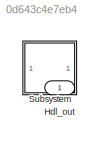
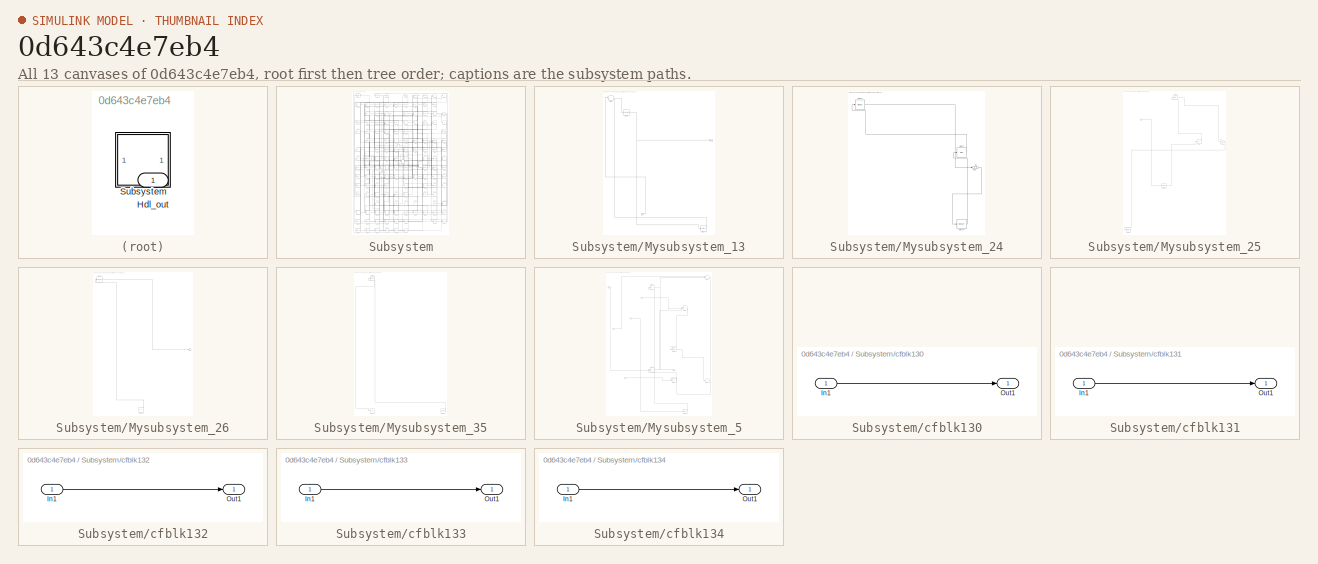
[diagram: thumbnail index - all 13 canvases of the model, root first then tree order]
MODEL slx_0d643c4e7eb4
KIND model
CONFIG AbsTol = auto
CONFIG EnableMultiTasking = off
CONFIG FixedStep = auto
CONFIG MaxStep = auto
CONFIG MinStep = auto
CONFIG RelTol = 1e-3
CONFIG SampleTimeConstraint = Unconstrained
CONFIG SolverName = VariableStepAuto
CONFIG StartTime = 0.0
CONFIG StopTime = 10.0
BLOCK [Outport] Hdl_out
  OutDataTypeStr = uint8
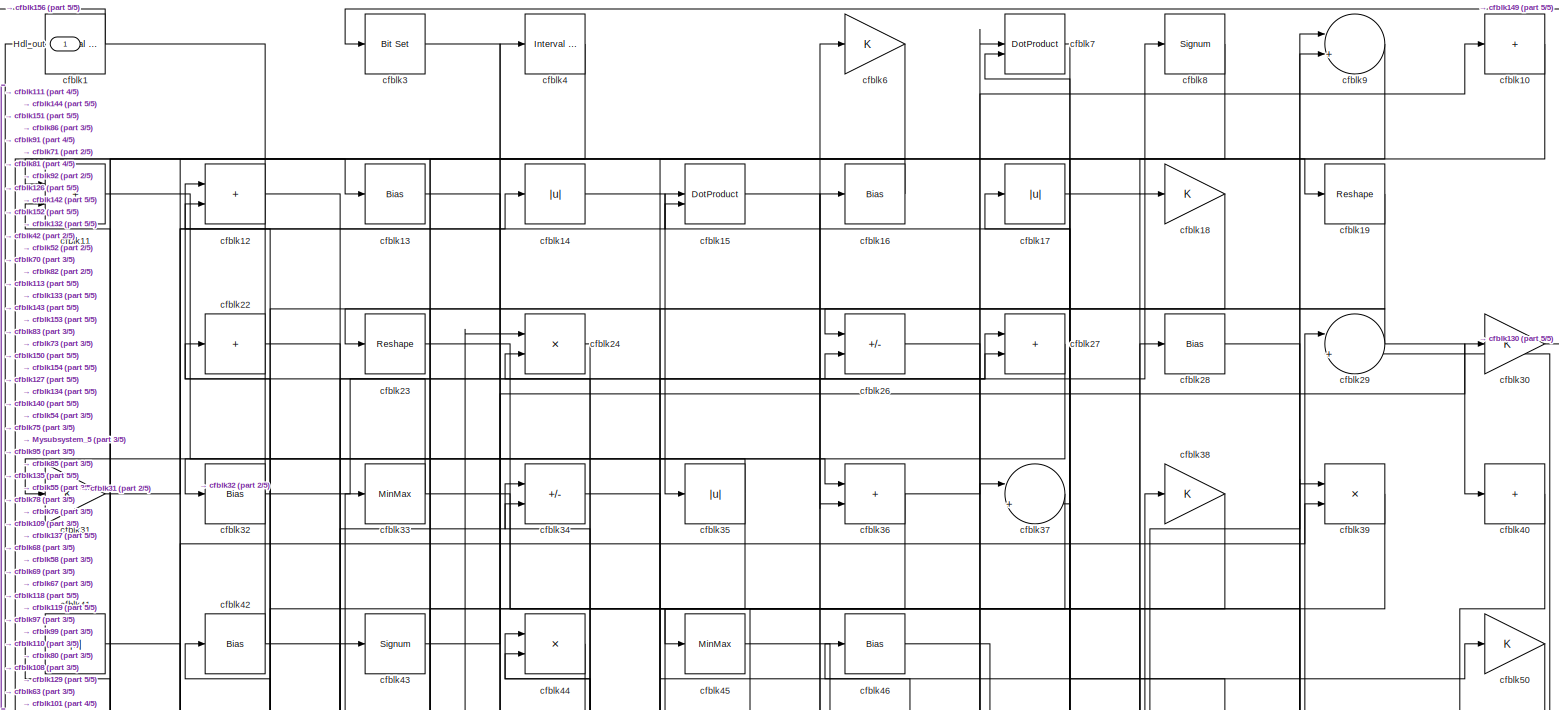
[diagram: Subsystem - part 1/5, full width, top band]
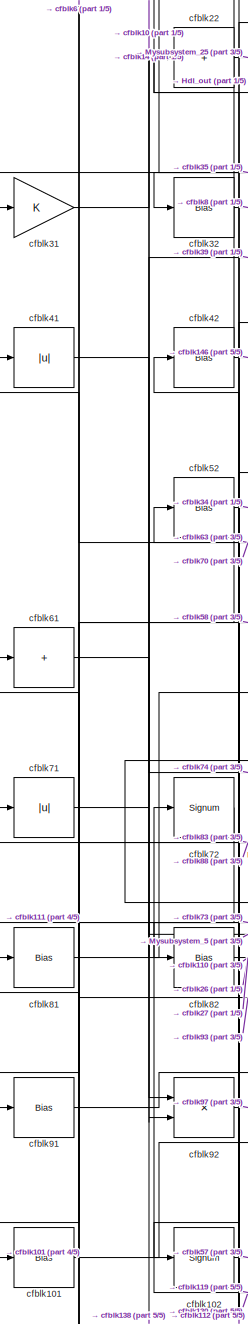
[diagram: Subsystem - part 2/5, middle left region]
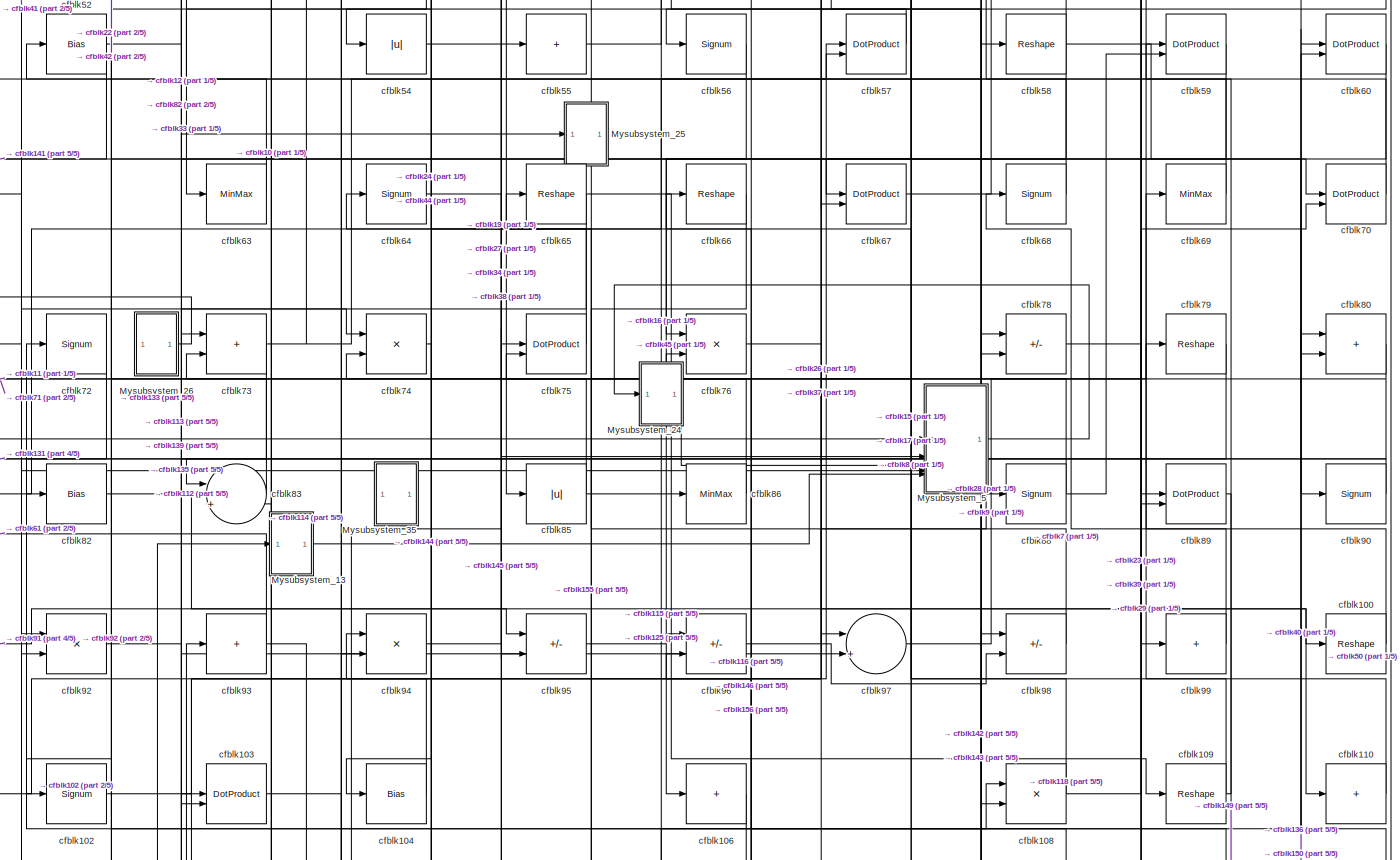
[diagram: Subsystem - part 3/5, full width, middle band]
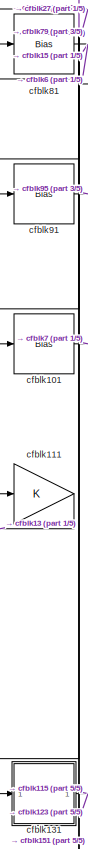
[diagram: Subsystem - part 4/5, bottom left region]
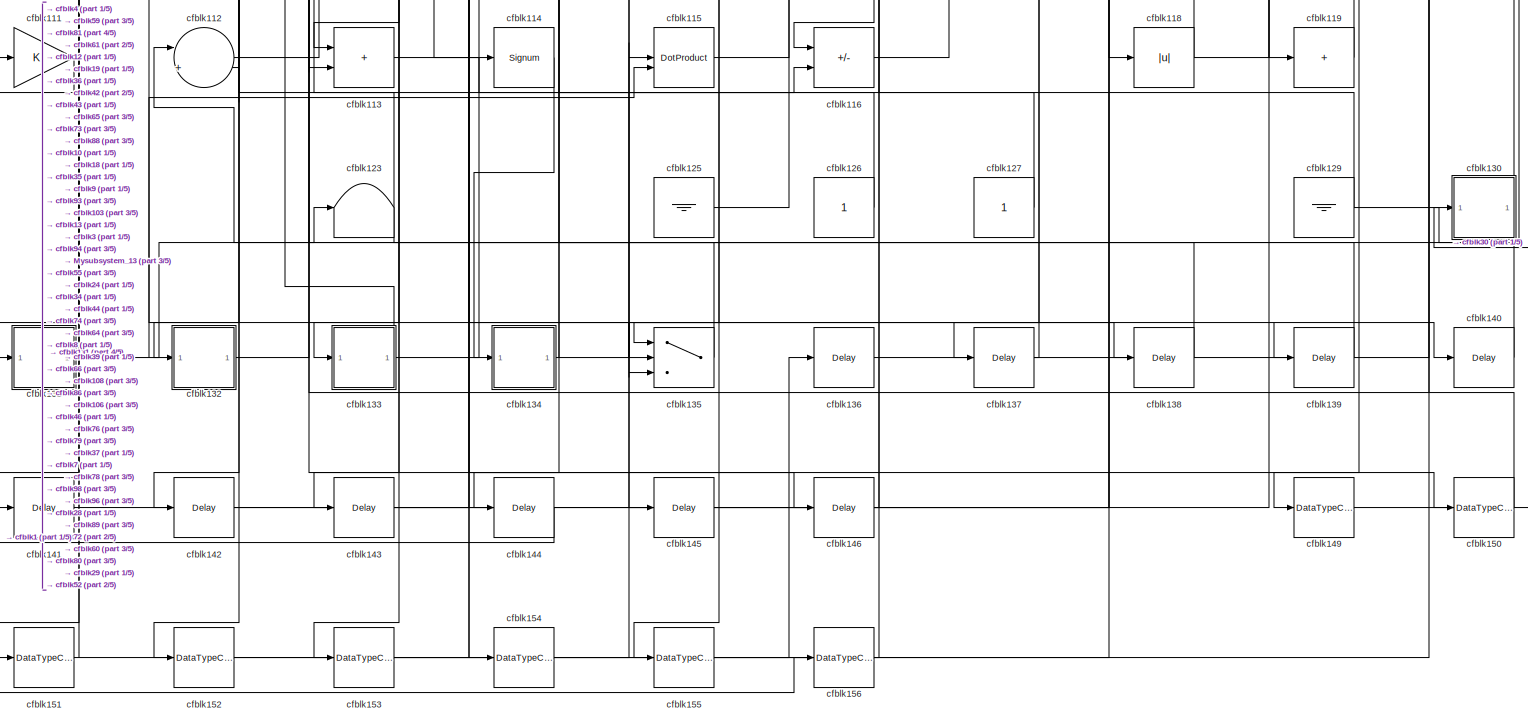
[diagram: Subsystem - part 5/5, full width, bottom band]
BLOCK [SubSystem] Subsystem
BLOCK [Outport] Subsystem/Hdl_out
  OutDataTypeStr = uint8
BLOCK [SubSystem] Subsystem/Mysubsystem_13
  RTWFcnName = Mysubsystem_13
  RTWFcnNameOpts = User specified
  RTWFileNameOpts = Use function name
  RTWSystemCode = Reusable function
  TreatAsAtomicUnit = on
BLOCK [Inport] Subsystem/Mysubsystem_13/In1
BLOCK [Outport] Subsystem/Mysubsystem_13/Out1
BLOCK [Delay] Subsystem/Mysubsystem_13/cfblk147
  InputPortMap = u0
  SampleTime = 1
BLOCK [Sum] Subsystem/Mysubsystem_13/cfblk51
  Inputs = |++
BLOCK [Reshape] Subsystem/Mysubsystem_13/cfblk62
BLOCK [SubSystem] Subsystem/Mysubsystem_24
  RTWFcnName = Mysubsystem_24
  RTWFcnNameOpts = User specified
  RTWFileNameOpts = Use function name
  RTWSystemCode = Reusable function
  TreatAsAtomicUnit = on
BLOCK [Inport] Subsystem/Mysubsystem_24/In1
BLOCK [Outport] Subsystem/Mysubsystem_24/Out1
BLOCK [Signum] Subsystem/Mysubsystem_24/cfblk107
BLOCK [MinMax] Subsystem/Mysubsystem_24/cfblk53
BLOCK [Bias] Subsystem/Mysubsystem_24/cfblk77
  Bias = 0.0
  SaturateOnIntegerOverflow = off
BLOCK [SubSystem] Subsystem/Mysubsystem_25
  RTWFcnName = Mysubsystem_25
  RTWFcnNameOpts = User specified
  RTWFileNameOpts = Use function name
  RTWSystemCode = Reusable function
  TreatAsAtomicUnit = on
BLOCK [Inport] Subsystem/Mysubsystem_25/In1
BLOCK [ToWorkspace] Subsystem/Mysubsystem_25/cfblk121
  MaxDataPoints = inf
  SampleTime = -1
  SaveFormat = Timeseries
  VariableName = simout
BLOCK [Sum] Subsystem/Mysubsystem_25/cfblk47
  IconShape = rectangular
  Inputs = +
BLOCK [Gain] Subsystem/Mysubsystem_25/cfblk49
BLOCK [Bias] Subsystem/Mysubsystem_25/cfblk5
  Bias = 0.0
  SaturateOnIntegerOverflow = off
BLOCK [Signum] Subsystem/Mysubsystem_25/cfblk84
BLOCK [SubSystem] Subsystem/Mysubsystem_26
  RTWFcnName = Mysubsystem_26
  RTWFcnNameOpts = User specified
  RTWFileNameOpts = Use function name
  RTWSystemCode = Reusable function
  TreatAsAtomicUnit = on
BLOCK [Outport] Subsystem/Mysubsystem_26/Out1
BLOCK [Constant] Subsystem/Mysubsystem_26/cfblk124
  SampleTime = -1
BLOCK [Signum] Subsystem/Mysubsystem_26/cfblk21
BLOCK [SubSystem] Subsystem/Mysubsystem_35
  RTWFcnName = Mysubsystem_35
  RTWFcnNameOpts = User specified
  RTWFileNameOpts = Use function name
  RTWSystemCode = Reusable function
  TreatAsAtomicUnit = on
BLOCK [Display] Subsystem/Mysubsystem_35/cfblk122
  Decimation = 1
BLOCK [Reference] Subsystem/Mysubsystem_35/cfblk128  REF=hdlsllib/Sources/Counter
Limited
  SourceBlock = hdlsllib/Sources/Counter\nLimited
  SourceType = Counter Limited
BLOCK [Reference] Subsystem/Mysubsystem_35/cfblk2  REF=hdlsllib/Logic and Bit
Operations/Detect Fall
Nonpositive
  SourceBlock = hdlsllib/Logic and Bit\nOperations/Detect Fall\nNonpositive
  SourceType = Detect Fall Nonpositive
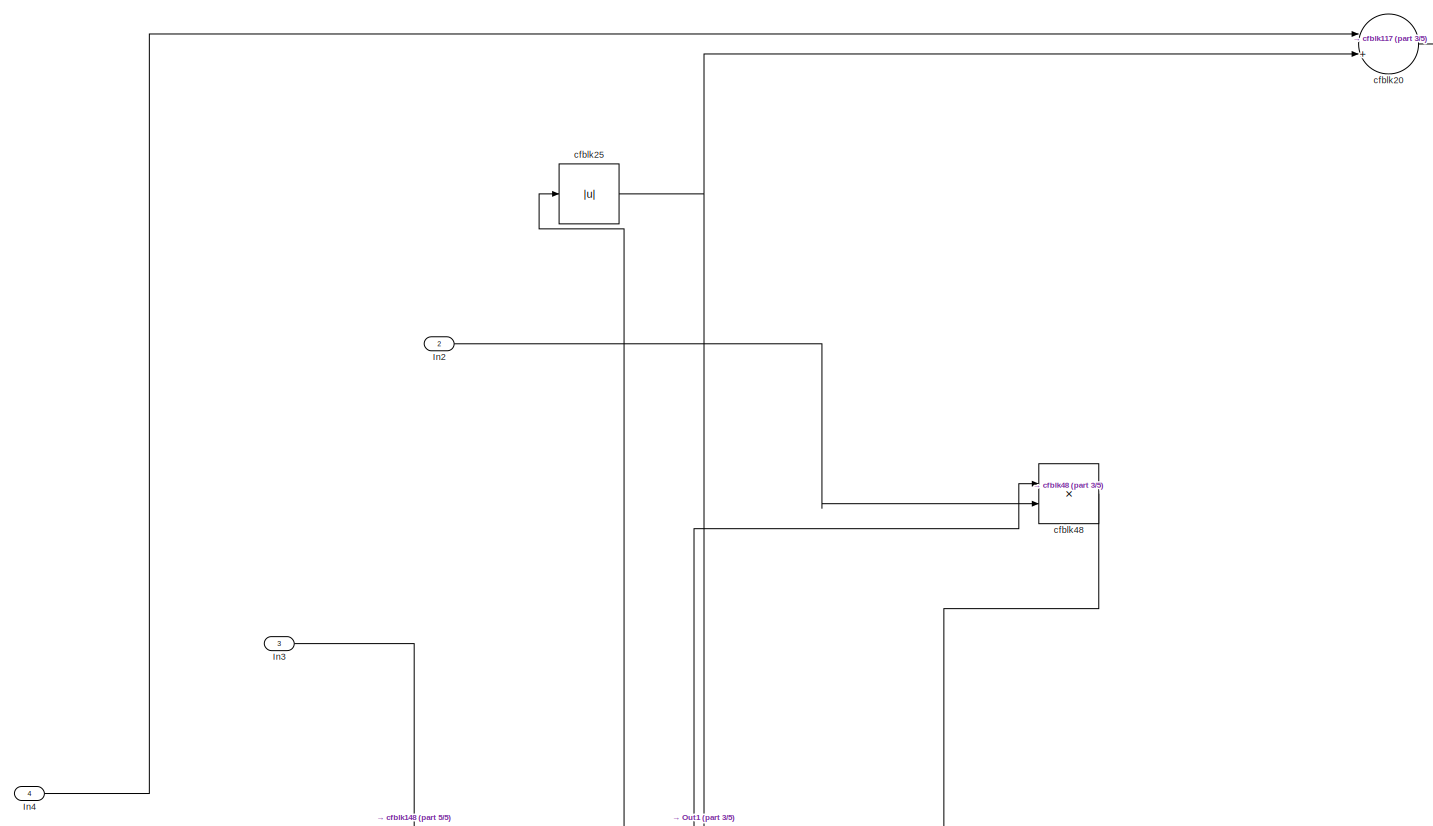
[diagram: Subsystem/Mysubsystem_5 - part 1/5, full width, top band]
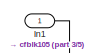
[diagram: Subsystem/Mysubsystem_5 - part 2/5, top left region]
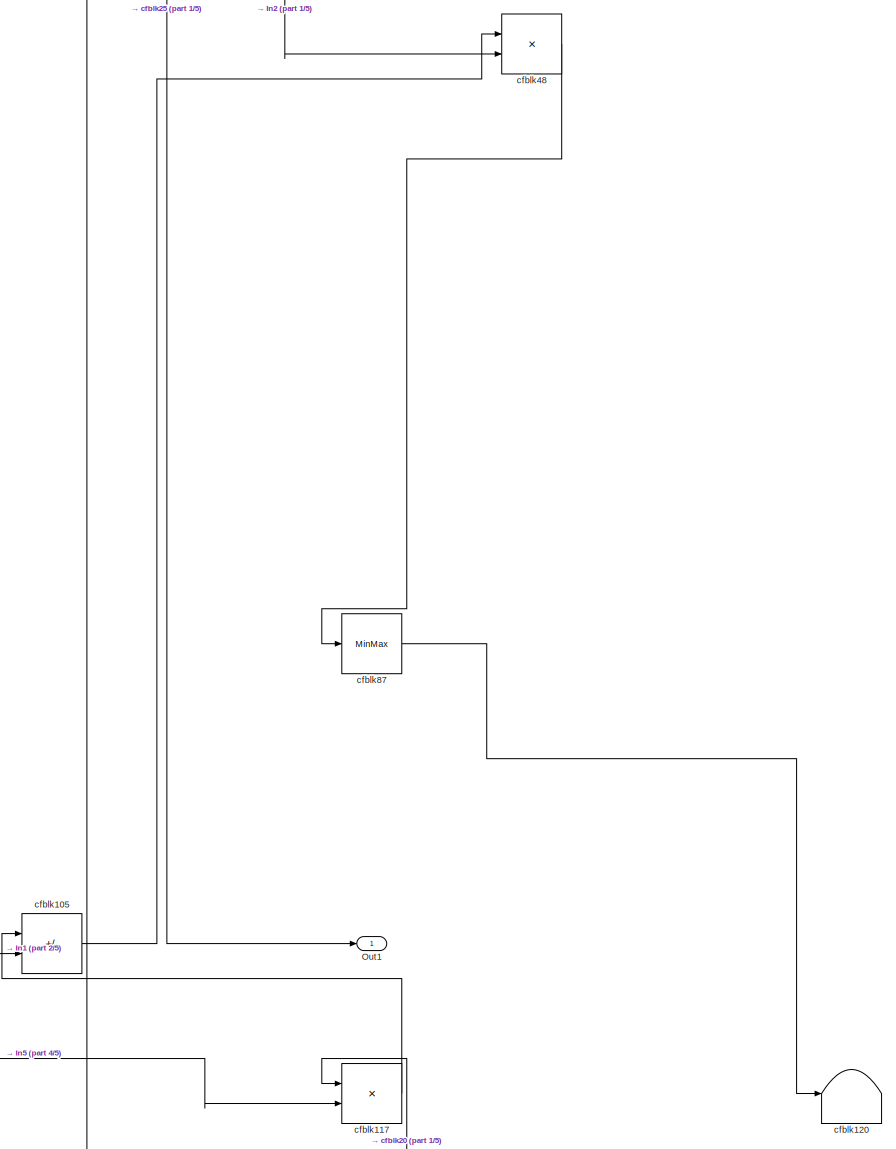
[diagram: Subsystem/Mysubsystem_5 - part 3/5, middle right region]
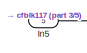
[diagram: Subsystem/Mysubsystem_5 - part 4/5, bottom left region]
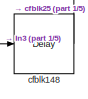
[diagram: Subsystem/Mysubsystem_5 - part 5/5, bottom right region]
BLOCK [SubSystem] Subsystem/Mysubsystem_5
  RTWFcnName = Mysubsystem_5
  RTWFcnNameOpts = User specified
  RTWFileNameOpts = Use function name
  RTWSystemCode = Reusable function
  TreatAsAtomicUnit = on
BLOCK [Inport] Subsystem/Mysubsystem_5/In1
BLOCK [Inport] Subsystem/Mysubsystem_5/In2
  Port = 2
BLOCK [Inport] Subsystem/Mysubsystem_5/In3
  Port = 3
BLOCK [Inport] Subsystem/Mysubsystem_5/In4
  Port = 4
BLOCK [Inport] Subsystem/Mysubsystem_5/In5
  Port = 5
BLOCK [Outport] Subsystem/Mysubsystem_5/Out1
BLOCK [Sum] Subsystem/Mysubsystem_5/cfblk105
  IconShape = rectangular
  Inputs = +-
BLOCK [Product] Subsystem/Mysubsystem_5/cfblk117
  Inputs = */
  RndMeth = Zero
  SaturateOnIntegerOverflow = on
BLOCK [Terminator] Subsystem/Mysubsystem_5/cfblk120
BLOCK [Delay] Subsystem/Mysubsystem_5/cfblk148
  InputPortMap = u0
  SampleTime = 1
BLOCK [Sum] Subsystem/Mysubsystem_5/cfblk20
  Inputs = |++
BLOCK [Abs] Subsystem/Mysubsystem_5/cfblk25
  SaturateOnIntegerOverflow = off
BLOCK [Product] Subsystem/Mysubsystem_5/cfblk48
  Inputs = */
  RndMeth = Zero
  SaturateOnIntegerOverflow = on
BLOCK [MinMax] Subsystem/Mysubsystem_5/cfblk87
BLOCK [Reference] Subsystem/cfblk1  REF=hdlsllib/Logic and Bit
Operations/Interval Test
  SourceBlock = hdlsllib/Logic and Bit\nOperations/Interval Test
  SourceType = Interval Test
BLOCK [Sum] Subsystem/cfblk10
  IconShape = rectangular
  Inputs = +
  OutDataTypeStr = uint8
BLOCK [Reshape] Subsystem/cfblk100
BLOCK [Bias] Subsystem/cfblk101
  Bias = 0.0
  SaturateOnIntegerOverflow = off
BLOCK [Signum] Subsystem/cfblk102
BLOCK [DotProduct] Subsystem/cfblk103
  OutDataTypeStr = uint8
BLOCK [Bias] Subsystem/cfblk104
  Bias = 0.0
  SaturateOnIntegerOverflow = off
BLOCK [Sum] Subsystem/cfblk106
  IconShape = rectangular
  Inputs = +
  OutDataTypeStr = uint8
BLOCK [Product] Subsystem/cfblk108
  Inputs = */
  OutDataTypeStr = uint8
  RndMeth = Zero
  SaturateOnIntegerOverflow = on
BLOCK [Reshape] Subsystem/cfblk109
BLOCK [Sum] Subsystem/cfblk11
  IconShape = rectangular
  OutDataTypeStr = uint8
BLOCK [Sum] Subsystem/cfblk110
  IconShape = rectangular
  Inputs = +
  OutDataTypeStr = uint8
BLOCK [Gain] Subsystem/cfblk111
  OutDataTypeStr = uint8
BLOCK [Sum] Subsystem/cfblk112
  Inputs = |++
  OutDataTypeStr = uint8
BLOCK [Sum] Subsystem/cfblk113
  IconShape = rectangular
  OutDataTypeStr = uint8
BLOCK [Signum] Subsystem/cfblk114
BLOCK [DotProduct] Subsystem/cfblk115
  OutDataTypeStr = uint8
BLOCK [Sum] Subsystem/cfblk116
  IconShape = rectangular
  Inputs = +-
  OutDataTypeStr = uint8
BLOCK [Abs] Subsystem/cfblk118
  OutDataTypeStr = uint8
  SaturateOnIntegerOverflow = off
BLOCK [Sum] Subsystem/cfblk119
  IconShape = rectangular
  Inputs = +
  OutDataTypeStr = uint8
BLOCK [Sum] Subsystem/cfblk12
  IconShape = rectangular
  OutDataTypeStr = uint8
BLOCK [Terminator] Subsystem/cfblk123
BLOCK [Ground] Subsystem/cfblk125
BLOCK [Constant] Subsystem/cfblk126
  OutDataTypeStr = uint8
  SampleTime = -1
BLOCK [Constant] Subsystem/cfblk127
  OutDataTypeStr = uint8
  SampleTime = -1
BLOCK [Ground] Subsystem/cfblk129
BLOCK [Bias] Subsystem/cfblk13
  Bias = 0.0
  SaturateOnIntegerOverflow = off
BLOCK [SubSystem] Subsystem/cfblk130
  LibrarySourceBlock = hdlsllib/Ports &\nSubsystems/Subsystem
BLOCK [Inport] Subsystem/cfblk130/In1
BLOCK [Outport] Subsystem/cfblk130/Out1
BLOCK [SubSystem] Subsystem/cfblk131
  LibrarySourceBlock = hdlsllib/Ports &\nSubsystems/Subsystem
BLOCK [Inport] Subsystem/cfblk131/In1
BLOCK [Outport] Subsystem/cfblk131/Out1
BLOCK [SubSystem] Subsystem/cfblk132
  LibrarySourceBlock = hdlsllib/Ports &\nSubsystems/Subsystem
BLOCK [Inport] Subsystem/cfblk132/In1
BLOCK [Outport] Subsystem/cfblk132/Out1
BLOCK [SubSystem] Subsystem/cfblk133
  LibrarySourceBlock = hdlsllib/Ports &\nSubsystems/Subsystem
BLOCK [Inport] Subsystem/cfblk133/In1
BLOCK [Outport] Subsystem/cfblk133/Out1
BLOCK [SubSystem] Subsystem/cfblk134
  LibrarySourceBlock = hdlsllib/Ports &\nSubsystems/Subsystem
BLOCK [Inport] Subsystem/cfblk134/In1
BLOCK [Outport] Subsystem/cfblk134/Out1
BLOCK [Switch] Subsystem/cfblk135
  InputSameDT = off
  OutDataTypeStr = uint8
  SaturateOnIntegerOverflow = off
BLOCK [Delay] Subsystem/cfblk136
  InputPortMap = u0
  SampleTime = 1
BLOCK [Delay] Subsystem/cfblk137
  InputPortMap = u0
  SampleTime = 1
BLOCK [Delay] Subsystem/cfblk138
  InputPortMap = u0
  SampleTime = 1
BLOCK [Delay] Subsystem/cfblk139
  InputPortMap = u0
  SampleTime = 1
BLOCK [Abs] Subsystem/cfblk14
  OutDataTypeStr = uint8
  SaturateOnIntegerOverflow = off
BLOCK [Delay] Subsystem/cfblk140
  InputPortMap = u0
  SampleTime = 1
BLOCK [Delay] Subsystem/cfblk141
  InputPortMap = u0
  SampleTime = 1
BLOCK [Delay] Subsystem/cfblk142
  InputPortMap = u0
  SampleTime = 1
BLOCK [Delay] Subsystem/cfblk143
  InputPortMap = u0
  SampleTime = 1
BLOCK [Delay] Subsystem/cfblk144
  InputPortMap = u0
  SampleTime = 1
BLOCK [Delay] Subsystem/cfblk145
  InputPortMap = u0
  SampleTime = 1
BLOCK [Delay] Subsystem/cfblk146
  InputPortMap = u0
  SampleTime = 1
BLOCK [DataTypeConversion] Subsystem/cfblk149
  OutDataTypeStr = uint8
  RndMeth = Floor
  SaturateOnIntegerOverflow = off
BLOCK [DotProduct] Subsystem/cfblk15
  OutDataTypeStr = uint8
BLOCK [DataTypeConversion] Subsystem/cfblk150
  OutDataTypeStr = uint8
  RndMeth = Floor
  SaturateOnIntegerOverflow = off
BLOCK [DataTypeConversion] Subsystem/cfblk151
  OutDataTypeStr = uint8
  RndMeth = Floor
  SaturateOnIntegerOverflow = off
BLOCK [DataTypeConversion] Subsystem/cfblk152
  OutDataTypeStr = uint8
  RndMeth = Floor
  SaturateOnIntegerOverflow = off
BLOCK [DataTypeConversion] Subsystem/cfblk153
  OutDataTypeStr = uint8
  RndMeth = Floor
  SaturateOnIntegerOverflow = off
BLOCK [DataTypeConversion] Subsystem/cfblk154
  OutDataTypeStr = uint8
  RndMeth = Floor
  SaturateOnIntegerOverflow = off
BLOCK [DataTypeConversion] Subsystem/cfblk155
  OutDataTypeStr = uint8
  RndMeth = Floor
  SaturateOnIntegerOverflow = off
BLOCK [DataTypeConversion] Subsystem/cfblk156
  OutDataTypeStr = uint8
  RndMeth = Floor
  SaturateOnIntegerOverflow = off
BLOCK [Bias] Subsystem/cfblk16
  Bias = 0.0
  SaturateOnIntegerOverflow = off
BLOCK [Abs] Subsystem/cfblk17
  OutDataTypeStr = uint8
  SaturateOnIntegerOverflow = off
BLOCK [Gain] Subsystem/cfblk18
  OutDataTypeStr = uint8
BLOCK [Reshape] Subsystem/cfblk19
BLOCK [Sum] Subsystem/cfblk22
  IconShape = rectangular
  Inputs = +
  OutDataTypeStr = uint8
BLOCK [Reshape] Subsystem/cfblk23
BLOCK [Product] Subsystem/cfblk24
  Inputs = */
  OutDataTypeStr = uint8
  RndMeth = Zero
  SaturateOnIntegerOverflow = on
BLOCK [Sum] Subsystem/cfblk26
  IconShape = rectangular
  Inputs = +-
  OutDataTypeStr = uint8
BLOCK [Sum] Subsystem/cfblk27
  IconShape = rectangular
  OutDataTypeStr = uint8
BLOCK [Bias] Subsystem/cfblk28
  Bias = 0.0
  SaturateOnIntegerOverflow = off
BLOCK [Sum] Subsystem/cfblk29
  Inputs = |++
  OutDataTypeStr = uint8
BLOCK [Reference] Subsystem/cfblk3  REF=simulink/Logic and Bit
Operations/Bit Set
  LibrarySourceBlock = hdlsllib/Logic and Bit\nOperations/Bit Set
  SourceBlock = simulink/Logic and Bit\nOperations/Bit Set
  SourceType = Bit Set
BLOCK [Gain] Subsystem/cfblk30
  OutDataTypeStr = uint8
BLOCK [Gain] Subsystem/cfblk31
  OutDataTypeStr = uint8
BLOCK [Bias] Subsystem/cfblk32
  Bias = 0.0
  SaturateOnIntegerOverflow = off
BLOCK [MinMax] Subsystem/cfblk33
  OutDataTypeStr = uint8
BLOCK [Sum] Subsystem/cfblk34
  IconShape = rectangular
  Inputs = +-
  OutDataTypeStr = uint8
BLOCK [Abs] Subsystem/cfblk35
  OutDataTypeStr = uint8
  SaturateOnIntegerOverflow = off
BLOCK [Sum] Subsystem/cfblk36
  IconShape = rectangular
  OutDataTypeStr = uint8
BLOCK [Sum] Subsystem/cfblk37
  Inputs = |++
  OutDataTypeStr = uint8
BLOCK [Gain] Subsystem/cfblk38
  OutDataTypeStr = uint8
BLOCK [Product] Subsystem/cfblk39
  Inputs = */
  OutDataTypeStr = uint8
  RndMeth = Zero
  SaturateOnIntegerOverflow = on
BLOCK [Reference] Subsystem/cfblk4  REF=hdlsllib/Logic and Bit
Operations/Interval Test
  SourceBlock = hdlsllib/Logic and Bit\nOperations/Interval Test
  SourceType = Interval Test
BLOCK [Sum] Subsystem/cfblk40
  IconShape = rectangular
  Inputs = +
  OutDataTypeStr = uint8
BLOCK [Abs] Subsystem/cfblk41
  OutDataTypeStr = uint8
  SaturateOnIntegerOverflow = off
BLOCK [Bias] Subsystem/cfblk42
  Bias = 0.0
  SaturateOnIntegerOverflow = off
BLOCK [Signum] Subsystem/cfblk43
BLOCK [Product] Subsystem/cfblk44
  Inputs = */
  OutDataTypeStr = uint8
  RndMeth = Zero
  SaturateOnIntegerOverflow = on
BLOCK [MinMax] Subsystem/cfblk45
  OutDataTypeStr = uint8
BLOCK [Bias] Subsystem/cfblk46
  Bias = 0.0
  SaturateOnIntegerOverflow = off
BLOCK [Gain] Subsystem/cfblk50
  OutDataTypeStr = uint8
BLOCK [Bias] Subsystem/cfblk52
  Bias = 0.0
  SaturateOnIntegerOverflow = off
BLOCK [Abs] Subsystem/cfblk54
  OutDataTypeStr = uint8
  SaturateOnIntegerOverflow = off
BLOCK [Sum] Subsystem/cfblk55
  IconShape = rectangular
  Inputs = +
  OutDataTypeStr = uint8
BLOCK [Signum] Subsystem/cfblk56
BLOCK [DotProduct] Subsystem/cfblk57
  OutDataTypeStr = uint8
BLOCK [Reshape] Subsystem/cfblk58
BLOCK [DotProduct] Subsystem/cfblk59
  OutDataTypeStr = uint8
BLOCK [Gain] Subsystem/cfblk6
  OutDataTypeStr = uint8
BLOCK [DotProduct] Subsystem/cfblk60
  OutDataTypeStr = uint8
BLOCK [Sum] Subsystem/cfblk61
  IconShape = rectangular
  Inputs = +
  OutDataTypeStr = uint8
BLOCK [MinMax] Subsystem/cfblk63
  OutDataTypeStr = uint8
BLOCK [Signum] Subsystem/cfblk64
BLOCK [Reshape] Subsystem/cfblk65
BLOCK [Reshape] Subsystem/cfblk66
BLOCK [DotProduct] Subsystem/cfblk67
  OutDataTypeStr = uint8
BLOCK [Signum] Subsystem/cfblk68
BLOCK [MinMax] Subsystem/cfblk69
  OutDataTypeStr = uint8
BLOCK [DotProduct] Subsystem/cfblk7
  OutDataTypeStr = uint8
BLOCK [DotProduct] Subsystem/cfblk70
  OutDataTypeStr = uint8
BLOCK [Abs] Subsystem/cfblk71
  OutDataTypeStr = uint8
  SaturateOnIntegerOverflow = off
BLOCK [Signum] Subsystem/cfblk72
BLOCK [Sum] Subsystem/cfblk73
  IconShape = rectangular
  OutDataTypeStr = uint8
BLOCK [Product] Subsystem/cfblk74
  Inputs = */
  OutDataTypeStr = uint8
  RndMeth = Zero
  SaturateOnIntegerOverflow = on
BLOCK [DotProduct] Subsystem/cfblk75
  OutDataTypeStr = uint8
BLOCK [Product] Subsystem/cfblk76
  Inputs = */
  OutDataTypeStr = uint8
  RndMeth = Zero
  SaturateOnIntegerOverflow = on
BLOCK [Sum] Subsystem/cfblk78
  IconShape = rectangular
  Inputs = +-
  OutDataTypeStr = uint8
BLOCK [Reshape] Subsystem/cfblk79
BLOCK [Signum] Subsystem/cfblk8
BLOCK [Sum] Subsystem/cfblk80
  IconShape = rectangular
  OutDataTypeStr = uint8
BLOCK [Bias] Subsystem/cfblk81
  Bias = 0.0
  SaturateOnIntegerOverflow = off
BLOCK [Bias] Subsystem/cfblk82
  Bias = 0.0
  SaturateOnIntegerOverflow = off
BLOCK [Sum] Subsystem/cfblk83
  Inputs = |++
  OutDataTypeStr = uint8
BLOCK [Abs] Subsystem/cfblk85
  OutDataTypeStr = uint8
  SaturateOnIntegerOverflow = off
BLOCK [MinMax] Subsystem/cfblk86
  OutDataTypeStr = uint8
BLOCK [Signum] Subsystem/cfblk88
BLOCK [DotProduct] Subsystem/cfblk89
  OutDataTypeStr = uint8
BLOCK [Sum] Subsystem/cfblk9
  Inputs = |++
  OutDataTypeStr = uint8
BLOCK [Signum] Subsystem/cfblk90
BLOCK [Bias] Subsystem/cfblk91
  Bias = 0.0
  SaturateOnIntegerOverflow = off
BLOCK [Product] Subsystem/cfblk92
  Inputs = */
  OutDataTypeStr = uint8
  RndMeth = Zero
  SaturateOnIntegerOverflow = on
BLOCK [Sum] Subsystem/cfblk93
  IconShape = rectangular
  Inputs = +
  OutDataTypeStr = uint8
BLOCK [Product] Subsystem/cfblk94
  Inputs = */
  OutDataTypeStr = uint8
  RndMeth = Zero
  SaturateOnIntegerOverflow = on
BLOCK [Sum] Subsystem/cfblk95
  IconShape = rectangular
  Inputs = +-
  OutDataTypeStr = uint8
BLOCK [Sum] Subsystem/cfblk96
  IconShape = rectangular
  Inputs = +-
  OutDataTypeStr = uint8
BLOCK [Sum] Subsystem/cfblk97
  Inputs = |++
  OutDataTypeStr = uint8
BLOCK [Sum] Subsystem/cfblk98
  IconShape = rectangular
  Inputs = +-
  OutDataTypeStr = uint8
BLOCK [Sum] Subsystem/cfblk99
  IconShape = rectangular
  Inputs = +
  OutDataTypeStr = uint8
LINE Subsystem/Mysubsystem_13/In1:1 -> Subsystem/Mysubsystem_13/cfblk51:1
LINE Subsystem/Mysubsystem_13/cfblk147:1 -> Subsystem/Mysubsystem_13/cfblk51:2
LINE Subsystem/Mysubsystem_13/cfblk51:1 -> Subsystem/Mysubsystem_13/cfblk62:1
NET Subsystem/Mysubsystem_13/cfblk62:1 -> Subsystem/Mysubsystem_13/Out1:1, Subsystem/Mysubsystem_13/cfblk147:1
LINE Subsystem/Mysubsystem_13:1 -> Subsystem/Mysubsystem_5:5
LINE Subsystem/Mysubsystem_24/In1:1 -> Subsystem/Mysubsystem_24/cfblk107:1
LINE Subsystem/Mysubsystem_24/cfblk107:1 -> Subsystem/Mysubsystem_24/cfblk77:1
LINE Subsystem/Mysubsystem_24/cfblk53:1 -> Subsystem/Mysubsystem_24/Out1:1
LINE Subsystem/Mysubsystem_24/cfblk77:1 -> Subsystem/Mysubsystem_24/cfblk53:1
LINE Subsystem/Mysubsystem_24:1 -> Subsystem/Mysubsystem_5:3
LINE Subsystem/Mysubsystem_25/In1:1 -> Subsystem/Mysubsystem_25/cfblk84:1
LINE Subsystem/Mysubsystem_25/cfblk47:1 -> Subsystem/Mysubsystem_25/cfblk5:1
LINE Subsystem/Mysubsystem_25/cfblk49:1 -> Subsystem/Mysubsystem_25/cfblk121:1
LINE Subsystem/Mysubsystem_25/cfblk5:1 -> Subsystem/Mysubsystem_25/cfblk49:1
LINE Subsystem/Mysubsystem_25/cfblk84:1 -> Subsystem/Mysubsystem_25/cfblk47:1
LINE Subsystem/Mysubsystem_26/cfblk124:1 -> Subsystem/Mysubsystem_26/cfblk21:1
LINE Subsystem/Mysubsystem_26/cfblk21:1 -> Subsystem/Mysubsystem_26/Out1:1
LINE Subsystem/Mysubsystem_26:1 -> Subsystem/Mysubsystem_5:1
LINE Subsystem/Mysubsystem_35/cfblk128:1 -> Subsystem/Mysubsystem_35/cfblk2:1
LINE Subsystem/Mysubsystem_35/cfblk2:1 -> Subsystem/Mysubsystem_35/cfblk122:1
LINE Subsystem/Mysubsystem_5/In1:1 -> Subsystem/Mysubsystem_5/cfblk105:2
LINE Subsystem/Mysubsystem_5/In2:1 -> Subsystem/Mysubsystem_5/cfblk48:2
LINE Subsystem/Mysubsystem_5/In3:1 -> Subsystem/Mysubsystem_5/cfblk148:1
LINE Subsystem/Mysubsystem_5/In4:1 -> Subsystem/Mysubsystem_5/cfblk20:1
LINE Subsystem/Mysubsystem_5/In5:1 -> Subsystem/Mysubsystem_5/cfblk117:2
LINE Subsystem/Mysubsystem_5/cfblk105:1 -> Subsystem/Mysubsystem_5/cfblk48:1
LINE Subsystem/Mysubsystem_5/cfblk117:1 -> Subsystem/Mysubsystem_5/cfblk105:1
LINE Subsystem/Mysubsystem_5/cfblk148:1 -> Subsystem/Mysubsystem_5/cfblk25:1
LINE Subsystem/Mysubsystem_5/cfblk20:1 -> Subsystem/Mysubsystem_5/cfblk117:1
NET Subsystem/Mysubsystem_5/cfblk25:1 -> Subsystem/Mysubsystem_5/Out1:1, Subsystem/Mysubsystem_5/cfblk20:2
LINE Subsystem/Mysubsystem_5/cfblk48:1 -> Subsystem/Mysubsystem_5/cfblk87:1
LINE Subsystem/Mysubsystem_5/cfblk87:1 -> Subsystem/Mysubsystem_5/cfblk120:1
LINE Subsystem/Mysubsystem_5:1 -> Subsystem/Mysubsystem_24:1
LINE Subsystem/cfblk100:1 -> Subsystem/cfblk68:1
LINE Subsystem/cfblk101:1 -> Subsystem/cfblk7:1
LINE Subsystem/cfblk102:1 -> Subsystem/cfblk57:1
LINE Subsystem/cfblk103:1 -> Subsystem/cfblk135:2
LINE Subsystem/cfblk104:1 -> Subsystem/cfblk94:1
LINE Subsystem/cfblk106:1 -> Subsystem/cfblk116:1
NET Subsystem/cfblk108:1 -> Subsystem/cfblk64:1, Subsystem/cfblk70:2
NET Subsystem/cfblk109:1 -> Subsystem/cfblk15:2, Subsystem/cfblk59:1, Subsystem/cfblk75:2
NET Subsystem/cfblk10:1 -> Subsystem/cfblk143:1, Subsystem/cfblk83:2, Subsystem/cfblk92:2
LINE Subsystem/cfblk110:1 -> Subsystem/cfblk29:1
LINE Subsystem/cfblk111:1 -> Subsystem/cfblk13:1
LINE Subsystem/cfblk112:1 -> Subsystem/cfblk88:1
LINE Subsystem/cfblk113:1 -> Subsystem/cfblk116:2
LINE Subsystem/cfblk114:1 -> Subsystem/cfblk134:1
LINE Subsystem/cfblk115:1 -> Subsystem/cfblk108:1
LINE Subsystem/cfblk116:1 -> Subsystem/cfblk79:1
NET Subsystem/cfblk118:1 -> Subsystem/cfblk96:2, Subsystem/cfblk9:2
LINE Subsystem/cfblk119:1 -> Subsystem/cfblk72:1
LINE Subsystem/cfblk11:1 -> Subsystem/cfblk36:1
LINE Subsystem/cfblk125:1 -> Subsystem/cfblk86:1
LINE Subsystem/cfblk126:1 -> Subsystem/cfblk12:2
LINE Subsystem/cfblk127:1 -> Subsystem/cfblk44:1
NET Subsystem/cfblk129:1 -> Subsystem/cfblk29:2, Subsystem/cfblk46:1
LINE Subsystem/cfblk12:1 -> Subsystem/cfblk70:1
LINE Subsystem/cfblk130/In1:1 -> Subsystem/cfblk130/Out1:1
LINE Subsystem/cfblk130:1 -> Subsystem/cfblk52:1
LINE Subsystem/cfblk131/In1:1 -> Subsystem/cfblk131/Out1:1
NET Subsystem/cfblk131:1 -> Subsystem/cfblk115:2, Subsystem/cfblk123:1
LINE Subsystem/cfblk132/In1:1 -> Subsystem/cfblk132/Out1:1
LINE Subsystem/cfblk132:1 -> Subsystem/cfblk43:1
LINE Subsystem/cfblk133/In1:1 -> Subsystem/cfblk133/Out1:1
NET Subsystem/cfblk133:1 -> Subsystem/Mysubsystem_13:1, Subsystem/cfblk55:1
LINE Subsystem/cfblk134/In1:1 -> Subsystem/cfblk134/Out1:1
NET Subsystem/cfblk134:1 -> Subsystem/cfblk139:1, Subsystem/cfblk140:1, Subsystem/cfblk34:2
LINE Subsystem/cfblk135:1 -> Subsystem/cfblk93:1
LINE Subsystem/cfblk136:1 -> Subsystem/cfblk60:1
LINE Subsystem/cfblk137:1 -> Subsystem/cfblk37:2
LINE Subsystem/cfblk138:1 -> Subsystem/cfblk112:1
LINE Subsystem/cfblk139:1 -> Subsystem/cfblk73:1
LINE Subsystem/cfblk13:1 -> Subsystem/cfblk154:1
LINE Subsystem/cfblk140:1 -> Subsystem/cfblk24:2
LINE Subsystem/cfblk141:1 -> Subsystem/cfblk94:2
LINE Subsystem/cfblk142:1 -> Subsystem/cfblk98:1
LINE Subsystem/cfblk143:1 -> Subsystem/cfblk78:1
LINE Subsystem/cfblk144:1 -> Subsystem/cfblk1:1
LINE Subsystem/cfblk145:1 -> Subsystem/cfblk89:2
LINE Subsystem/cfblk146:1 -> Subsystem/cfblk76:2
LINE Subsystem/cfblk149:1 -> Subsystem/cfblk3:1
LINE Subsystem/cfblk14:1 -> Subsystem/cfblk35:1
NET Subsystem/cfblk150:1 -> Subsystem/cfblk103:1, Subsystem/cfblk80:1
NET Subsystem/cfblk151:1 -> Subsystem/cfblk115:1, Subsystem/cfblk81:1
LINE Subsystem/cfblk152:1 -> Subsystem/cfblk4:1
LINE Subsystem/cfblk153:1 -> Subsystem/cfblk136:1
LINE Subsystem/cfblk154:1 -> Subsystem/cfblk18:1
LINE Subsystem/cfblk155:1 -> Subsystem/cfblk60:2
LINE Subsystem/cfblk156:1 -> Subsystem/cfblk66:1
LINE Subsystem/cfblk15:1 -> Subsystem/cfblk36:2
LINE Subsystem/cfblk16:1 -> Subsystem/cfblk11:1
LINE Subsystem/cfblk17:1 -> Subsystem/cfblk19:1
LINE Subsystem/cfblk18:1 -> Subsystem/cfblk153:1
NET Subsystem/cfblk19:1 -> Subsystem/cfblk152:1, Subsystem/cfblk95:2
LINE Subsystem/cfblk1:1 -> Subsystem/cfblk156:1
LINE Subsystem/cfblk22:1 -> Subsystem/Mysubsystem_25:1
LINE Subsystem/cfblk23:1 -> Subsystem/cfblk99:1
LINE Subsystem/cfblk24:1 -> Subsystem/cfblk54:1
LINE Subsystem/cfblk26:1 -> Subsystem/cfblk97:1
LINE Subsystem/cfblk27:1 -> Subsystem/cfblk91:1
LINE Subsystem/cfblk28:1 -> Subsystem/cfblk119:1
NET Subsystem/cfblk29:1 -> Subsystem/cfblk26:1, Subsystem/cfblk40:1
LINE Subsystem/cfblk30:1 -> Subsystem/cfblk130:1
LINE Subsystem/cfblk31:1 -> Subsystem/cfblk14:1
LINE Subsystem/cfblk32:1 -> Subsystem/cfblk8:1
NET Subsystem/cfblk33:1 -> Subsystem/cfblk12:1, Subsystem/cfblk58:1
LINE Subsystem/cfblk34:1 -> Subsystem/Mysubsystem_5:2
NET Subsystem/cfblk35:1 -> Subsystem/cfblk113:1, Subsystem/cfblk32:1
NET Subsystem/cfblk36:1 -> Subsystem/cfblk10:1, Subsystem/cfblk142:1
LINE Subsystem/cfblk37:1 -> Subsystem/cfblk45:1
LINE Subsystem/cfblk38:1 -> Subsystem/cfblk85:1
LINE Subsystem/cfblk39:1 -> Subsystem/cfblk135:1
LINE Subsystem/cfblk3:1 -> Subsystem/cfblk150:1
LINE Subsystem/cfblk40:1 -> Subsystem/cfblk80:2
LINE Subsystem/cfblk41:1 -> Subsystem/cfblk74:1
NET Subsystem/cfblk42:1 -> Subsystem/Hdl_out:1, Subsystem/cfblk146:1
LINE Subsystem/cfblk43:1 -> Subsystem/cfblk30:1
LINE Subsystem/cfblk44:1 -> Subsystem/cfblk132:1
LINE Subsystem/cfblk45:1 -> Subsystem/cfblk78:2
LINE Subsystem/cfblk46:1 -> Subsystem/cfblk118:1
LINE Subsystem/cfblk4:1 -> Subsystem/cfblk151:1
NET Subsystem/cfblk50:1 -> Subsystem/cfblk108:2, Subsystem/cfblk63:1
NET Subsystem/cfblk52:1 -> Subsystem/cfblk101:1, Subsystem/cfblk112:2, Subsystem/cfblk34:1
NET Subsystem/cfblk54:1 -> Subsystem/cfblk104:1, Subsystem/cfblk27:2, Subsystem/cfblk50:1
LINE Subsystem/cfblk55:1 -> Subsystem/cfblk16:1
LINE Subsystem/cfblk56:1 -> Subsystem/cfblk106:1
LINE Subsystem/cfblk57:1 -> Subsystem/cfblk56:1
NET Subsystem/cfblk58:1 -> Subsystem/cfblk67:2, Subsystem/cfblk7:2, Subsystem/cfblk82:1, Subsystem/cfblk90:1
LINE Subsystem/cfblk59:1 -> Subsystem/cfblk141:1
LINE Subsystem/cfblk60:1 -> Subsystem/cfblk76:1
NET Subsystem/cfblk61:1 -> Subsystem/Mysubsystem_5:4, Subsystem/cfblk138:1
LINE Subsystem/cfblk63:1 -> Subsystem/cfblk42:1
LINE Subsystem/cfblk64:1 -> Subsystem/cfblk145:1
NET Subsystem/cfblk65:1 -> Subsystem/cfblk109:1, Subsystem/cfblk113:2
LINE Subsystem/cfblk66:1 -> Subsystem/cfblk155:1
LINE Subsystem/cfblk67:1 -> Subsystem/cfblk9:1
NET Subsystem/cfblk68:1 -> Subsystem/cfblk17:1, Subsystem/cfblk33:1
LINE Subsystem/cfblk69:1 -> Subsystem/cfblk38:1
LINE Subsystem/cfblk6:1 -> Subsystem/cfblk31:1
LINE Subsystem/cfblk70:1 -> Subsystem/cfblk41:1
NET Subsystem/cfblk71:1 -> Subsystem/cfblk39:2, Subsystem/cfblk92:1
LINE Subsystem/cfblk72:1 -> Subsystem/cfblk111:1
NET Subsystem/cfblk73:1 -> Subsystem/cfblk102:1, Subsystem/cfblk24:1, Subsystem/cfblk28:1
LINE Subsystem/cfblk74:1 -> Subsystem/cfblk144:1
LINE Subsystem/cfblk75:1 -> Subsystem/cfblk44:2
NET Subsystem/cfblk76:1 -> Subsystem/cfblk100:1, Subsystem/cfblk37:1
LINE Subsystem/cfblk78:1 -> Subsystem/cfblk89:1
LINE Subsystem/cfblk79:1 -> Subsystem/cfblk131:1
LINE Subsystem/cfblk7:1 -> Subsystem/cfblk137:1
NET Subsystem/cfblk80:1 -> Subsystem/cfblk103:2, Subsystem/cfblk73:2
NET Subsystem/cfblk81:1 -> Subsystem/cfblk15:1, Subsystem/cfblk6:1
NET Subsystem/cfblk82:1 -> Subsystem/cfblk110:1, Subsystem/cfblk26:2, Subsystem/cfblk27:1
LINE Subsystem/cfblk83:1 -> Subsystem/cfblk22:1
NET Subsystem/cfblk85:1 -> Subsystem/cfblk57:2, Subsystem/cfblk74:2
LINE Subsystem/cfblk86:1 -> Subsystem/cfblk11:2
NET Subsystem/cfblk88:1 -> Subsystem/cfblk59:2, Subsystem/cfblk71:1
LINE Subsystem/cfblk89:1 -> Subsystem/cfblk149:1
NET Subsystem/cfblk8:1 -> Subsystem/cfblk135:3, Subsystem/cfblk67:1
LINE Subsystem/cfblk90:1 -> Subsystem/cfblk83:1
LINE Subsystem/cfblk91:1 -> Subsystem/cfblk95:1
LINE Subsystem/cfblk92:1 -> Subsystem/cfblk97:2
NET Subsystem/cfblk93:1 -> Subsystem/cfblk114:1, Subsystem/cfblk61:1
LINE Subsystem/cfblk94:1 -> Subsystem/cfblk75:1
LINE Subsystem/cfblk95:1 -> Subsystem/cfblk96:1
LINE Subsystem/cfblk96:1 -> Subsystem/cfblk98:2
LINE Subsystem/cfblk97:1 -> Subsystem/cfblk39:1
LINE Subsystem/cfblk98:1 -> Subsystem/cfblk65:1
LINE Subsystem/cfblk99:1 -> Subsystem/cfblk69:1
NET Subsystem/cfblk9:1 -> Subsystem/cfblk133:1, Subsystem/cfblk23:1
note: NET lines group one-source signal fan-out (src -> all destinations, sorted); 1:1 wires keep LINE
